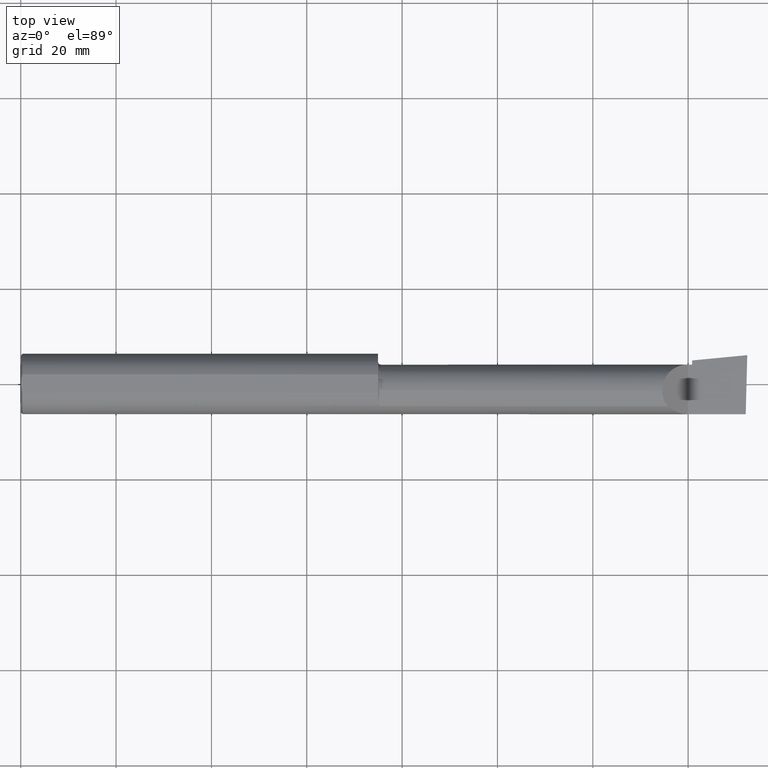
[diagram: clean part render]
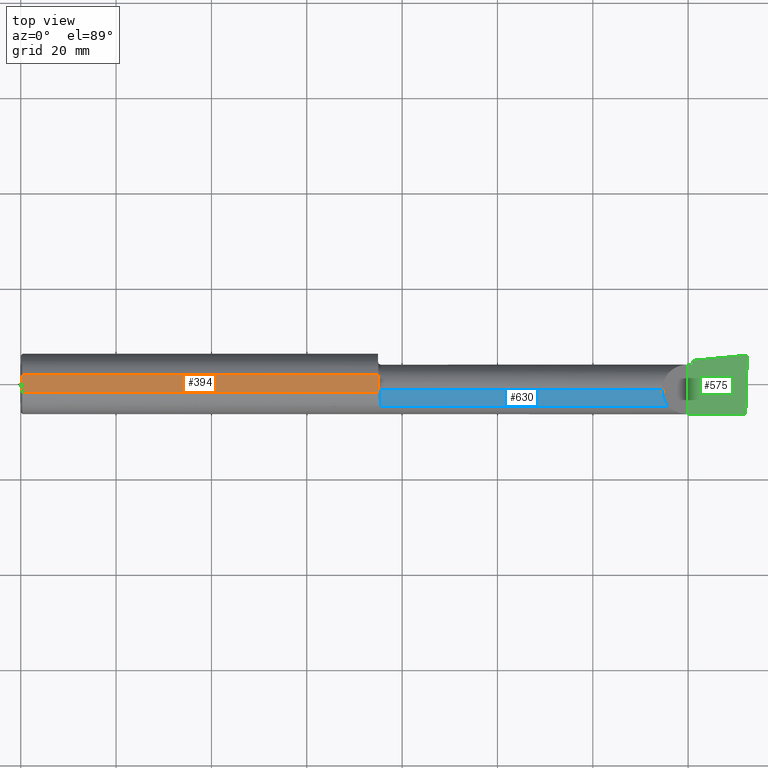
[diagram: same view with three faces highlighted in distinct colors, each labeled with its STEP entity id]
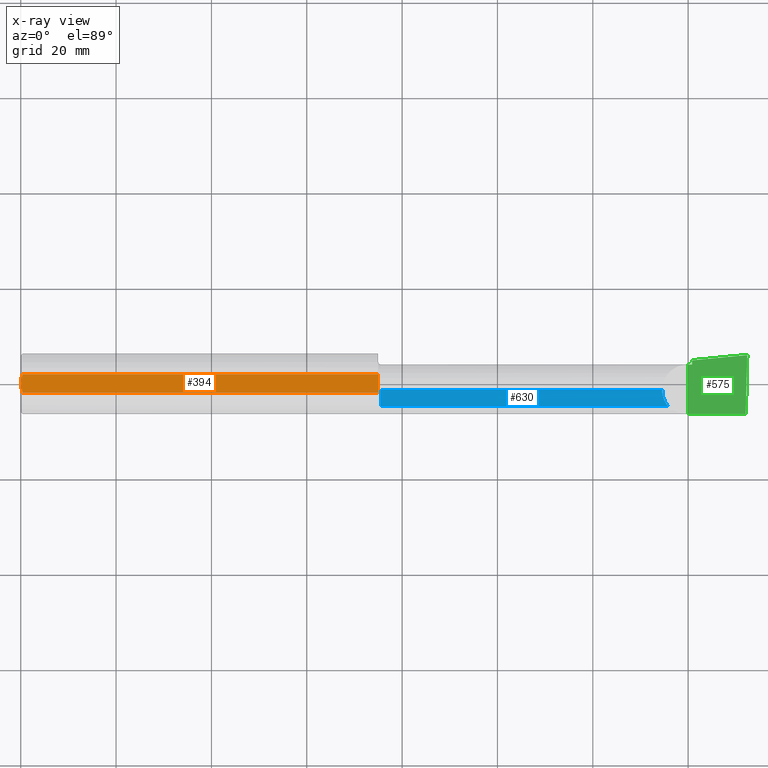
[diagram: x-ray of the same camera — body ghosted, the three highlighted faces saturated]
A machine part, top view with three faces highlighted in distinct colors.
The next image is the same camera in x-ray (body ghosted, the three faces saturated) — at least one of them is partly hidden behind the body in this view.
Their STEP definitions:

[orange] entity #394 — the highlighted planar face has unit normal (0, -0, -1).
#19 = EDGE_CURVE ( 'NONE', #496, #695, #371, .T. ) ;
#29 = VERTEX_POINT ( 'NONE', #412 ) ;
#30 = PLANE ( 'NONE',  #258 ) ;
#56 = EDGE_CURVE ( 'NONE', #635, #93, #611, .T. ) ;
#68 = CARTESIAN_POINT ( 'NONE',  ( 2.950000900032403006, -0.05299999999999998462, 0.2378500000000221548 ) ) ;
#79 = VERTEX_POINT ( 'NONE', #454 ) ;
#83 = CARTESIAN_POINT ( 'NONE',  ( 0.003000000000000061211, -0.01298133447204027208, 0.2378500000000000614 ) ) ;
#89 = CARTESIAN_POINT ( 'NONE',  ( 6.000000000000000888, 0.2998500000000000609, 0.2378499999999999504 ) ) ;
#93 = VERTEX_POINT ( 'NONE', #68 ) ;
#98 = DIRECTION ( 'NONE',  ( 0.0000000000000000000, -1.138839417068644240E-16, -1.000000000000000000 ) ) ;
#107 = B_SPLINE_CURVE_WITH_KNOTS ( 'NONE', 3,
 ( #728, #552, #209, #435 ),
 .UNSPECIFIED., .F., .F.,
 ( 4, 4 ),
 ( 0.4999999999997267186, 1.000000000000000000 ),
 .UNSPECIFIED. ) ;
#110 = EDGE_CURVE ( 'NONE', #614, #451, #271, .T. ) ;
#113 = FACE_OUTER_BOUND ( 'NONE', #593, .T. ) ;
#121 = CARTESIAN_POINT ( 'NONE',  ( 2.950000900032403006, -0.05299999999999998462, 0.2378500000000221548 ) ) ;
#133 = CARTESIAN_POINT ( 'NONE',  ( 0.003000000000000063380, 0.01299872814765626154, 0.2378499999999999226 ) ) ;
#134 = CARTESIAN_POINT ( 'NONE',  ( 2.950000000000000622, 0.2998500000000000609, 0.2378499999999999504 ) ) ;
#137 = CARTESIAN_POINT ( 'NONE',  ( 2.950000000000000622, -0.07650098038590467941, 0.2378500000000000059 ) ) ;
#146 = VECTOR ( 'NONE', #237, 39.37007874015748143 ) ;
#154 = CARTESIAN_POINT ( 'NONE',  ( 2.950000000000000622, 0.2998500000000000609, 0.2378499999999999504 ) ) ;
#157 = CARTESIAN_POINT ( 'NONE',  ( 0.003000000000000035624, 4.000211044293764417E-17, 0.2378500000000000059 ) ) ;
#191 = CARTESIAN_POINT ( 'NONE',  ( 0.01499999999999999771, 0.07650098038587500870, 0.2378499999999999226 ) ) ;
#207 = CARTESIAN_POINT ( 'NONE',  ( 0.004068542164723867871, -0.02585015905295367025, 0.2378500000000000059 ) ) ;
#209 = CARTESIAN_POINT ( 'NONE',  ( 2.950000000000000622, -0.06096394231309006095, 0.2378500000000000059 ) ) ;
#237 = DIRECTION ( 'NONE',  ( -1.000000000000000000, -0.0000000000000000000, -0.0000000000000000000 ) ) ;
#246 = CARTESIAN_POINT ( 'NONE',  ( 0.01499999999998188026, -0.07650098038590467941, 0.2378500000000000059 ) ) ;
#249 = CARTESIAN_POINT ( 'NONE',  ( 0.008199648822849016708, 0.05156445313451110679, 0.2378500000000000059 ) ) ;
#258 = AXIS2_PLACEMENT_3D ( 'NONE', #89, #98, #507 ) ;
#267 = EDGE_CURVE ( 'NONE', #695, #79, #609, .T. ) ;
#271 = LINE ( 'NONE', #296, #146 ) ;
#281 = VECTOR ( 'NONE', #703, 39.37007874015748143 ) ;
#296 = CARTESIAN_POINT ( 'NONE',  ( 0.0000000000000000000, -0.07650098038587496707, 0.2378499999999999226 ) ) ;
#316 = CARTESIAN_POINT ( 'NONE',  ( 0.01120982745448973784, -0.06412238594540853320, 0.2378500000000000059 ) ) ;
#362 = B_SPLINE_CURVE_WITH_KNOTS ( 'NONE', 3,
 ( #721, #316, #551, #207, #83, #157 ),
 .UNSPECIFIED., .F., .F.,
 ( 4, 2, 4 ),
 ( 0.002692677063605044066, 0.003672889278957895340, 0.004653101494310745746 ),
 .UNSPECIFIED. ) ;
#363 = DIRECTION ( 'NONE',  ( 0.0000000000000000000, -1.000000000000000000, 1.138839417068644240E-16 ) ) ;
#365 = EDGE_CURVE ( 'NONE', #451, #496, #362, .T. ) ;
#371 = B_SPLINE_CURVE_WITH_KNOTS ( 'NONE', 3,
 ( #713, #133, #717, #249, #702, #706 ),
 .UNSPECIFIED., .F., .F.,
 ( 4, 2, 4 ),
 ( 0.004653101494310745746, 0.005634627094920352519, 0.006616152695529959292 ),
 .UNSPECIFIED. ) ;
#380 = EDGE_CURVE ( 'NONE', #93, #29, #107, .T. ) ;
#386 = ORIENTED_EDGE ( 'NONE', *, *, #110, .F. ) ;
#394 = ADVANCED_FACE ( 'NONE', ( #113 ), #30, .F. ) ;
#401 = ORIENTED_EDGE ( 'NONE', *, *, #56, .F. ) ;
#412 = CARTESIAN_POINT ( 'NONE',  ( 2.950000000000000622, -0.06494989539702575310, 0.2378500000000000059 ) ) ;
#425 = CARTESIAN_POINT ( 'NONE',  ( 2.950001800035618515, -0.04901601311796581484, 0.2378500024320483464 ) ) ;
#435 = CARTESIAN_POINT ( 'NONE',  ( 2.950000000000000622, -0.06494989539702575310, 0.2378500000000000059 ) ) ;
#437 = CARTESIAN_POINT ( 'NONE',  ( 0.003000000000000035624, 4.000211044293764417E-17, 0.2378500000000000059 ) ) ;
#441 = LINE ( 'NONE', #134, #281 ) ;
#451 = VERTEX_POINT ( 'NONE', #246 ) ;
#454 = CARTESIAN_POINT ( 'NONE',  ( 2.950000000000000622, 0.07650098038587503646, 0.2378500000000000059 ) ) ;
#460 = ORIENTED_EDGE ( 'NONE', *, *, #380, .F. ) ;
#473 = CARTESIAN_POINT ( 'NONE',  ( 2.950000000000000622, -0.04105010460297417452, 0.2378500000000000059 ) ) ;
#496 = VERTEX_POINT ( 'NONE', #437 ) ;
#499 = VECTOR ( 'NONE', #545, 39.37007874015748143 ) ;
#507 = DIRECTION ( 'NONE',  ( 0.0000000000000000000, 1.000000000000000000, -1.138839417068644240E-16 ) ) ;
#522 = ORIENTED_EDGE ( 'NONE', *, *, #267, .F. ) ;
#545 = DIRECTION ( 'NONE',  ( 1.000000000000000000, 0.0000000000000000000, 0.0000000000000000000 ) ) ;
#547 = EDGE_CURVE ( 'NONE', #29, #614, #564, .T. ) ;
#551 = CARTESIAN_POINT ( 'NONE',  ( 0.008160184410935168720, -0.05138200716576601240, 0.2378500000000000614 ) ) ;
#552 = CARTESIAN_POINT ( 'NONE',  ( 2.950001800093990489, -0.05698398688203851203, 0.2378499975680403167 ) ) ;
#559 = ORIENTED_EDGE ( 'NONE', *, *, #365, .F. ) ;
#564 = LINE ( 'NONE', #154, #645 ) ;
#593 = EDGE_LOOP ( 'NONE', ( #716, #522, #741, #559, #386, #745, #460, #401 ) ) ;
#609 = LINE ( 'NONE', #722, #499 ) ;
#611 = B_SPLINE_CURVE_WITH_KNOTS ( 'NONE', 3,
 ( #473, #690, #425, #121 ),
 .UNSPECIFIED., .F., .F.,
 ( 4, 4 ),
 ( 0.0000000000000000000, 0.4999999999997267186 ),
 .UNSPECIFIED. ) ;
#614 = VERTEX_POINT ( 'NONE', #137 ) ;
#635 = VERTEX_POINT ( 'NONE', #736 ) ;
#645 = VECTOR ( 'NONE', #363, 39.37007874015748143 ) ;
#681 = EDGE_CURVE ( 'NONE', #79, #635, #441, .T. ) ;
#690 = CARTESIAN_POINT ( 'NONE',  ( 2.950000000000000622, -0.04503596074371495755, 0.2378500000000000059 ) ) ;
#695 = VERTEX_POINT ( 'NONE', #191 ) ;
#702 = CARTESIAN_POINT ( 'NONE',  ( 0.01120763235350242214, 0.06411521680875356677, 0.2378500000000000336 ) ) ;
#703 = DIRECTION ( 'NONE',  ( 0.0000000000000000000, -1.000000000000000000, 1.138839417068644240E-16 ) ) ;
#706 = CARTESIAN_POINT ( 'NONE',  ( 0.01499999999999999771, 0.07650098038587500870, 0.2378499999999999226 ) ) ;
#713 = CARTESIAN_POINT ( 'NONE',  ( 0.003000000000000035624, 4.000211044293764417E-17, 0.2378500000000000059 ) ) ;
#716 = ORIENTED_EDGE ( 'NONE', *, *, #681, .F. ) ;
#717 = CARTESIAN_POINT ( 'NONE',  ( 0.004092330037930667214, 0.02606142970188504368, 0.2378500000000000059 ) ) ;
#721 = CARTESIAN_POINT ( 'NONE',  ( 0.01499999999998188026, -0.07650098038590467941, 0.2378500000000000059 ) ) ;
#722 = CARTESIAN_POINT ( 'NONE',  ( 0.0000000000000000000, 0.07650098038587500870, 0.2378499999999999226 ) ) ;
#728 = CARTESIAN_POINT ( 'NONE',  ( 2.950000900032403006, -0.05299999999999998462, 0.2378500000000221548 ) ) ;
#736 = CARTESIAN_POINT ( 'NONE',  ( 2.950000000000000622, -0.04105010460297417452, 0.2378500000000000059 ) ) ;
#741 = ORIENTED_EDGE ( 'NONE', *, *, #19, .F. ) ;
#745 = ORIENTED_EDGE ( 'NONE', *, *, #547, .F. ) ;

[blue] entity #630 — the highlighted cylindrical surface (edge-blend (fillet) strip) has radius 5.414 mm, axis along (-1, -0, -0).
#2 = FACE_OUTER_BOUND ( 'NONE', #70, .T. ) ;
#31 = LINE ( 'NONE', #554, #634 ) ;
#70 = EDGE_LOOP ( 'NONE', ( #210, #390, #718, #294 ) ) ;
#91 = DIRECTION ( 'NONE',  ( -1.000000000000000000, -0.0000000000000000000, -0.0000000000000000000 ) ) ;
#95 = CARTESIAN_POINT ( 'NONE',  ( 5.344079160038589293, -0.1868028301886780762, 0.1659208399614099383 ) ) ;
#100 = AXIS2_PLACEMENT_3D ( 'NONE', #577, #174, #519 ) ;
#111 = VERTEX_POINT ( 'NONE', #699 ) ;
#112 = LINE ( 'NONE', #628, #709 ) ;
#130 = CARTESIAN_POINT ( 'NONE',  ( 2.975000000000000533, -0.1868028301886802411, 0.1659208399614077178 ) ) ;
#153 =( BOUNDED_CURVE ( )  B_SPLINE_CURVE ( 3, ( #428, #206, #369, #256 ),
 .UNSPECIFIED., .F., .F. ) 
 B_SPLINE_CURVE_WITH_KNOTS ( ( 4, 4 ),
 ( 5.604538515477355709, 6.283185307179586232 ),
 .UNSPECIFIED. ) 
 CURVE ( )  GEOMETRIC_REPRESENTATION_ITEM ( )  RATIONAL_B_SPLINE_CURVE ( ( 1.000000000000000000, 0.9619867256453034088, 0.9619867256453034088, 1.000000000000000000 ) ) 
 REPRESENTATION_ITEM ( '' )  );
#174 = DIRECTION ( 'NONE',  ( -1.000000000000000000, -0.0000000000000000000, -0.0000000000000000000 ) ) ;
#175 = EDGE_CURVE ( 'NONE', #392, #111, #215, .T. ) ;
#206 = CARTESIAN_POINT ( 'NONE',  ( 5.313215146136122335, -0.1485302233682047890, 0.1967848538638760358 ) ) ;
#210 = ORIENTED_EDGE ( 'NONE', *, *, #244, .T. ) ;
#215 = CIRCLE ( 'NONE', #100, 0.2131499999999997008 ) ;
#234 = DIRECTION ( 'NONE',  ( 1.000000000000000000, 0.0000000000000000000, 0.0000000000000000000 ) ) ;
#241 = DIRECTION ( 'NONE',  ( 0.0000000000000000000, 0.0000000000000000000, 1.000000000000000000 ) ) ;
#244 = EDGE_CURVE ( 'NONE', #652, #739, #153, .T. ) ;
#256 = CARTESIAN_POINT ( 'NONE',  ( 5.296849999999999170, -0.05299999999999998462, 0.2131499999999999506 ) ) ;
#294 = ORIENTED_EDGE ( 'NONE', *, *, #768, .T. ) ;
#301 = CYLINDRICAL_SURFACE ( 'NONE', #704, 0.2131499999999999506 ) ;
#302 = CARTESIAN_POINT ( 'NONE',  ( 5.296849999999999170, -0.05299999999999998462, 0.2131499999999999506 ) ) ;
#326 = CARTESIAN_POINT ( 'NONE',  ( 0.0000000000000000000, -0.05299999999999998462, 0.0000000000000000000 ) ) ;
#369 = CARTESIAN_POINT ( 'NONE',  ( 5.296849999999999170, -0.1021668565906563297, 0.2131500000000000061 ) ) ;
#390 = ORIENTED_EDGE ( 'NONE', *, *, #481, .T. ) ;
#392 = VERTEX_POINT ( 'NONE', #130 ) ;
#428 = CARTESIAN_POINT ( 'NONE',  ( 5.344079160038589293, -0.1868028301886780762, 0.1659208399614099383 ) ) ;
#481 = EDGE_CURVE ( 'NONE', #739, #111, #31, .T. ) ;
#519 = DIRECTION ( 'NONE',  ( 0.0000000000000000000, 0.0000000000000000000, 1.000000000000000000 ) ) ;
#554 = CARTESIAN_POINT ( 'NONE',  ( 0.0000000000000000000, -0.05299999999999998462, 0.2131499999999999506 ) ) ;
#577 = CARTESIAN_POINT ( 'NONE',  ( 2.975000000000000533, -0.05299999999999998462, 0.0000000000000000000 ) ) ;
#591 = DIRECTION ( 'NONE',  ( -1.000000000000000000, -0.0000000000000000000, -0.0000000000000000000 ) ) ;
#628 = CARTESIAN_POINT ( 'NONE',  ( 4.259999999999999787, -0.1868028301886794917, 0.1659208399614086338 ) ) ;
#630 = ADVANCED_FACE ( 'NONE', ( #2 ), #301, .T. ) ;
#634 = VECTOR ( 'NONE', #91, 39.37007874015748143 ) ;
#652 = VERTEX_POINT ( 'NONE', #95 ) ;
#699 = CARTESIAN_POINT ( 'NONE',  ( 2.975000000000000533, -0.05299999999999998462, 0.2131499999999997008 ) ) ;
#704 = AXIS2_PLACEMENT_3D ( 'NONE', #326, #591, #241 ) ;
#709 = VECTOR ( 'NONE', #234, 39.37007874015748143 ) ;
#718 = ORIENTED_EDGE ( 'NONE', *, *, #175, .F. ) ;
#739 = VERTEX_POINT ( 'NONE', #302 ) ;
#768 = EDGE_CURVE ( 'NONE', #392, #652, #112, .T. ) ;

[green] entity #575 — the highlighted planar face has unit normal (-0, 0, -1).
#10 = CARTESIAN_POINT ( 'NONE',  ( 4.678149108241350816E-32, 0.1601499999999999591, 4.235963549344508711E-16 ) ) ;
#23 = CARTESIAN_POINT ( 'NONE',  ( 4.678149108241350816E-32, -0.2498499999999999888, 4.235963549344508711E-16 ) ) ;
#60 = EDGE_LOOP ( 'NONE', ( #465, #86, #600, #565, #343, #385 ) ) ;
#64 = CARTESIAN_POINT ( 'NONE',  ( 5.544999999999999929, 0.1601500000000002366, 4.235963549344514135E-16 ) ) ;
#67 = CARTESIAN_POINT ( 'NONE',  ( 5.544999999999999929, -0.2500000000000000555, -1.887870261551340527E-16 ) ) ;
#72 = CARTESIAN_POINT ( 'NONE',  ( 6.000000000000016875, 0.2381500000000415784, 1.307616116217359986E-13 ) ) ;
#86 = ORIENTED_EDGE ( 'NONE', *, *, #132, .T. ) ;
#132 = EDGE_CURVE ( 'NONE', #287, #725, #235, .T. ) ;
#159 = CARTESIAN_POINT ( 'NONE',  ( 5.510000000000000675, -0.2500000000000000555, -1.849216666712503932E-16 ) ) ;
#161 = LINE ( 'NONE', #164, #746 ) ;
#164 = CARTESIAN_POINT ( 'NONE',  ( 2.976291640117795900, -0.05299999999999998462, 9.489815156492843319E-17 ) ) ;
#165 = VERTEX_POINT ( 'NONE', #403 ) ;
#179 = VECTOR ( 'NONE', #320, 39.37007874015748143 ) ;
#199 = VECTOR ( 'NONE', #212, 39.37007874015748143 ) ;
#203 = DIRECTION ( 'NONE',  ( 0.0000000000000000000, 1.000000000000000000, 0.0000000000000000000 ) ) ;
#211 = VECTOR ( 'NONE', #714, 39.37007874015748143 ) ;
#212 = DIRECTION ( 'NONE',  ( -1.000000000000000000, -0.0000000000000000000, -0.0000000000000000000 ) ) ;
#217 = VECTOR ( 'NONE', #203, 39.37007874015748143 ) ;
#218 = VERTEX_POINT ( 'NONE', #64 ) ;
#235 = LINE ( 'NONE', #405, #566 ) ;
#275 = FACE_OUTER_BOUND ( 'NONE', #60, .T. ) ;
#287 = VERTEX_POINT ( 'NONE', #480 ) ;
#320 = DIRECTION ( 'NONE',  ( -0.0000000000000000000, 1.000000000000000000, -0.0000000000000000000 ) ) ;
#343 = ORIENTED_EDGE ( 'NONE', *, *, #538, .F. ) ;
#347 = DIRECTION ( 'NONE',  ( 0.02617694830786730306, 0.9996573249755573709, -2.890951868598569845E-18 ) ) ;
#349 = LINE ( 'NONE', #10, #211 ) ;
#360 = LINE ( 'NONE', #67, #217 ) ;
#374 = CARTESIAN_POINT ( 'NONE',  ( 5.510000000000000675, 0.1601499999999999035, -1.849216666712503932E-16 ) ) ;
#378 = DIRECTION ( 'NONE',  ( 0.9953961983671787417, 0.09584575252022461966, -1.099304038737262581E-16 ) ) ;
#385 = ORIENTED_EDGE ( 'NONE', *, *, #506, .F. ) ;
#399 = VERTEX_POINT ( 'NONE', #374 ) ;
#403 = CARTESIAN_POINT ( 'NONE',  ( 5.544999999999999929, 0.1943384830701262445, 4.235967783249002216E-16 ) ) ;
#405 = CARTESIAN_POINT ( 'NONE',  ( 5.987226101480005447, -0.2496655036952227513, -2.376259648801821009E-16 ) ) ;
#415 = VERTEX_POINT ( 'NONE', #619 ) ;
#418 = DIRECTION ( 'NONE',  ( -1.104388423966789920E-16, 0.0000000000000000000, -1.000000000000000000 ) ) ;
#453 = EDGE_CURVE ( 'NONE', #218, #165, #360, .T. ) ;
#465 = ORIENTED_EDGE ( 'NONE', *, *, #501, .F. ) ;
#480 = CARTESIAN_POINT ( 'NONE',  ( 5.987221270274238449, -0.2498499999999999888, -2.376254313274097985E-16 ) ) ;
#490 = LINE ( 'NONE', #159, #179 ) ;
#501 = EDGE_CURVE ( 'NONE', #287, #415, #658, .T. ) ;
#506 = EDGE_CURVE ( 'NONE', #415, #399, #490, .T. ) ;
#515 = AXIS2_PLACEMENT_3D ( 'NONE', #601, #418, #651 ) ;
#535 = PLANE ( 'NONE',  #515 ) ;
#538 = EDGE_CURVE ( 'NONE', #399, #218, #349, .T. ) ;
#565 = ORIENTED_EDGE ( 'NONE', *, *, #453, .F. ) ;
#566 = VECTOR ( 'NONE', #347, 39.37007874015748143 ) ;
#575 = ADVANCED_FACE ( 'NONE', ( #275 ), #535, .F. ) ;
#600 = ORIENTED_EDGE ( 'NONE', *, *, #678, .F. ) ;
#601 = CARTESIAN_POINT ( 'NONE',  ( 6.000000000000000888, -0.2500000000000000555, -2.390366994456230070E-16 ) ) ;
#619 = CARTESIAN_POINT ( 'NONE',  ( 5.510000000000000675, -0.2498499999999999888, -1.849216666712503932E-16 ) ) ;
#651 = DIRECTION ( 'NONE',  ( -1.000000000000000000, 0.0000000000000000000, 1.104388423966789920E-16 ) ) ;
#658 = LINE ( 'NONE', #23, #199 ) ;
#678 = EDGE_CURVE ( 'NONE', #165, #725, #161, .T. ) ;
#714 = DIRECTION ( 'NONE',  ( 1.000000000000000000, 0.0000000000000000000, 0.0000000000000000000 ) ) ;
#725 = VERTEX_POINT ( 'NONE', #72 ) ;
#746 = VECTOR ( 'NONE', #378, 39.37007874015748143 ) ;